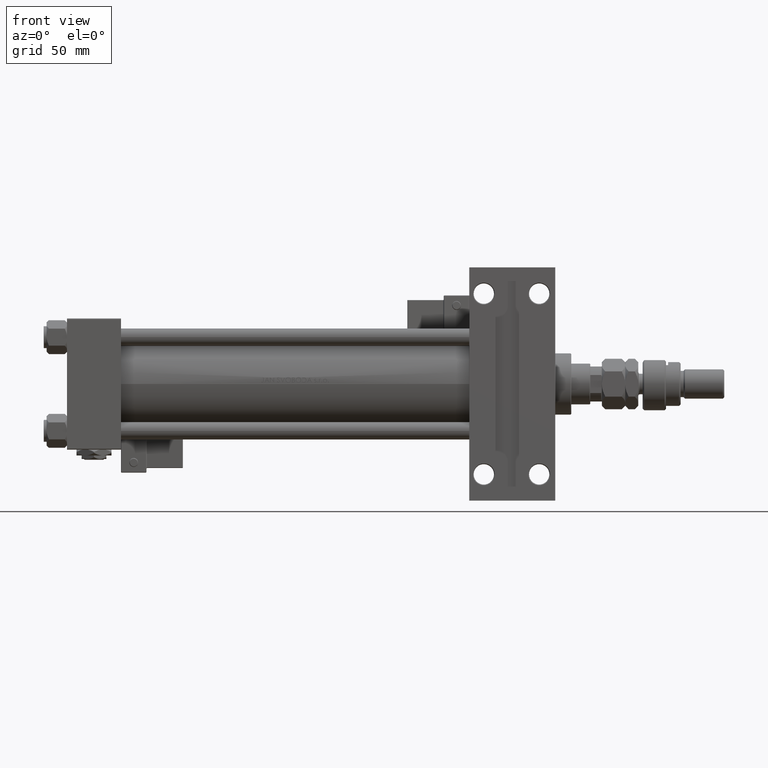
[diagram: clean part render]
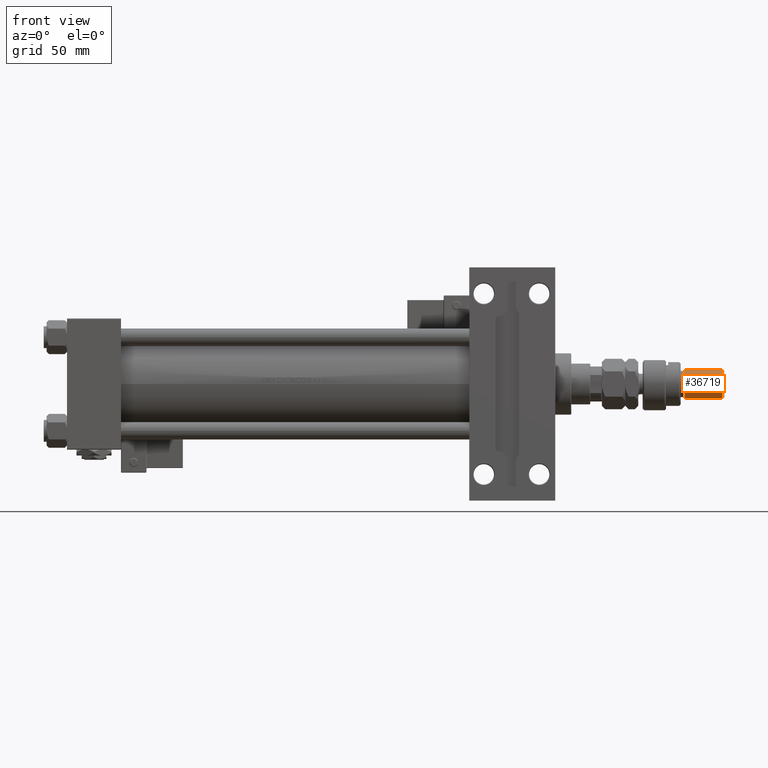
[diagram: same view with one face highlighted and labeled with its STEP entity id]
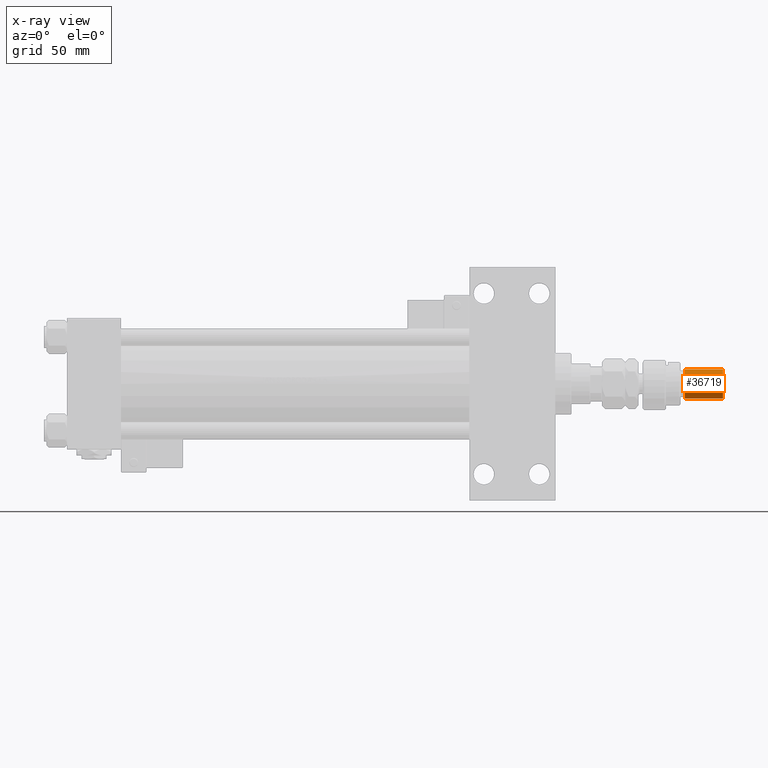
[diagram: x-ray of the same camera — body ghosted, the highlighted face saturated]
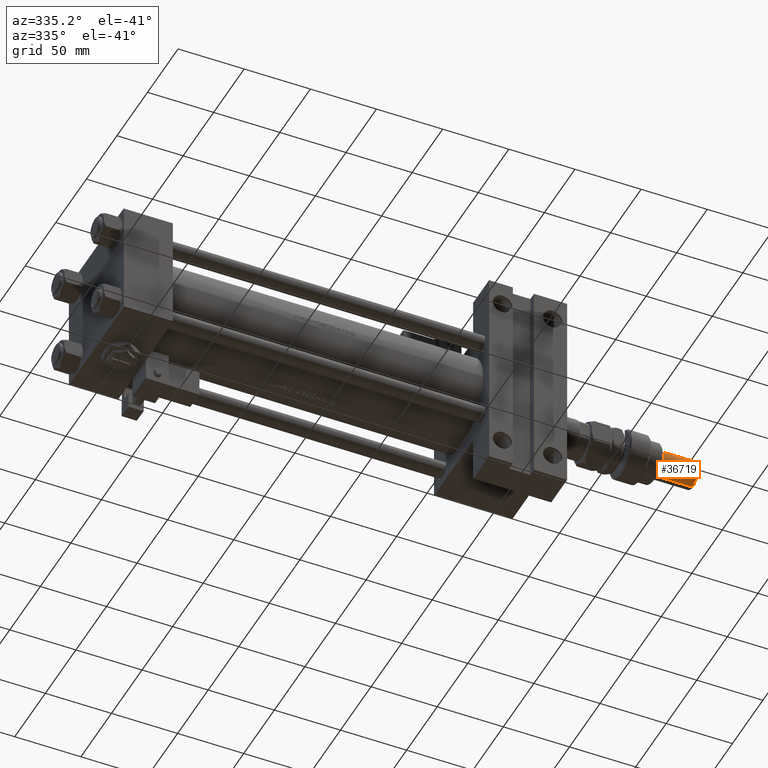
[diagram: same view with one face highlighted and labeled with its STEP entity id]
A machine part, front view. The second image highlights one B-rep face of the part: STEP entity #36719.
The next image is the same camera in x-ray: the body ghosted, the highlighted face saturated — about 0% of this face is hidden behind the body in this view.
A second angle (auxiliary view) of the same face is appended — the face is thin or edge-on in the first view.
In plain terms, the highlighted cylindrical surface (edge-blend (fillet) strip) has radius 10 mm, axis along (-1, -0, 0).
Its self-contained STEP definition (entity closure, byte-faithful):
#743 = EDGE_CURVE ( 'NONE', #21658, #51073, #5953, .T. ) ;
#2645 = ORIENTED_EDGE ( 'NONE', *, *, #743, .T. ) ;
#4417 = DIRECTION ( 'NONE',  ( -0.000000000000000000, -0.000000000000000000, -1.000000000000000000 ) ) ;
#5407 = VECTOR ( 'NONE', #14387, 1000.000000000000000 ) ;
#5895 = VERTEX_POINT ( 'NONE', #31919 ) ;
#5905 = EDGE_CURVE ( 'NONE', #48691, #5895, #48635, .T. ) ;
#5953 = LINE ( 'NONE', #30896, #42436 ) ;
#8540 = CARTESIAN_POINT ( 'NONE',  ( 0.000000000000000000, 0.000000000000000000, 56.00000000000000711 ) ) ;
#11384 = AXIS2_PLACEMENT_3D ( 'NONE', #45602, #51319, #43106 ) ;
#13587 = EDGE_LOOP ( 'NONE', ( #49980, #23512, #2645, #18548 ) ) ;
#14387 = DIRECTION ( 'NONE',  ( -0.000000000000000000, -0.000000000000000000, -1.000000000000000000 ) ) ;
#14871 = CARTESIAN_POINT ( 'NONE',  ( 0.000000000000000000, 0.000000000000000000, 54.99999999999998579 ) ) ;
#18548 = ORIENTED_EDGE ( 'NONE', *, *, #34401, .T. ) ;
#18604 = EDGE_CURVE ( 'NONE', #48691, #21658, #18710, .T. ) ;
#18710 = CIRCLE ( 'NONE', #38838, 10.00000000000000000 ) ;
#21658 = VERTEX_POINT ( 'NONE', #38998 ) ;
#23512 = ORIENTED_EDGE ( 'NONE', *, *, #18604, .T. ) ;
#26659 = AXIS2_PLACEMENT_3D ( 'NONE', #8540, #4417, #34542 ) ;
#30393 = CARTESIAN_POINT ( 'NONE',  ( -10.00000000000000000, 0.000000000000000000, 29.00000000000000711 ) ) ;
#30896 = CARTESIAN_POINT ( 'NONE',  ( -10.00000000000000000, 0.000000000000000000, 56.00000000000000711 ) ) ;
#31919 = CARTESIAN_POINT ( 'NONE',  ( 10.00000000000000000, 1.224646799147353256E-15, 29.00000000000000711 ) ) ;
#34401 = EDGE_CURVE ( 'NONE', #51073, #5895, #36759, .T. ) ;
#34542 = DIRECTION ( 'NONE',  ( -1.000000000000000000, 0.000000000000000000, 0.000000000000000000 ) ) ;
#35692 = DIRECTION ( 'NONE',  ( 0.000000000000000000, 0.000000000000000000, -1.000000000000000000 ) ) ;
#36719 = ADVANCED_FACE ( 'NONE', ( #45804 ), #37589, .T. ) ;
#36759 = CIRCLE ( 'NONE', #11384, 10.00000000000000000 ) ;
#37589 = CYLINDRICAL_SURFACE ( 'NONE', #26659, 10.00000000000000000 ) ;
#37983 = CARTESIAN_POINT ( 'NONE',  ( 10.00000000000000000, 1.224646799147353256E-15, 54.99999999999998579 ) ) ;
#38838 = AXIS2_PLACEMENT_3D ( 'NONE', #14871, #35692, #47749 ) ;
#38998 = CARTESIAN_POINT ( 'NONE',  ( -10.00000000000000000, 0.000000000000000000, 54.99999999999998579 ) ) ;
#42436 = VECTOR ( 'NONE', #43492, 1000.000000000000000 ) ;
#43106 = DIRECTION ( 'NONE',  ( 1.000000000000000000, 0.000000000000000000, 0.000000000000000000 ) ) ;
#43492 = DIRECTION ( 'NONE',  ( -0.000000000000000000, -0.000000000000000000, -1.000000000000000000 ) ) ;
#45602 = CARTESIAN_POINT ( 'NONE',  ( 0.000000000000000000, 0.000000000000000000, 29.00000000000000711 ) ) ;
#45804 = FACE_OUTER_BOUND ( 'NONE', #13587, .T. ) ;
#47749 = DIRECTION ( 'NONE',  ( 1.000000000000000000, 0.000000000000000000, 0.000000000000000000 ) ) ;
#48635 = LINE ( 'NONE', #52999, #5407 ) ;
#48691 = VERTEX_POINT ( 'NONE', #37983 ) ;
#49980 = ORIENTED_EDGE ( 'NONE', *, *, #5905, .F. ) ;
#51073 = VERTEX_POINT ( 'NONE', #30393 ) ;
#51319 = DIRECTION ( 'NONE',  ( -0.000000000000000000, -0.000000000000000000, 1.000000000000000000 ) ) ;
#52999 = CARTESIAN_POINT ( 'NONE',  ( 10.00000000000000000, 1.224646799147353256E-15, 56.00000000000000711 ) ) ;